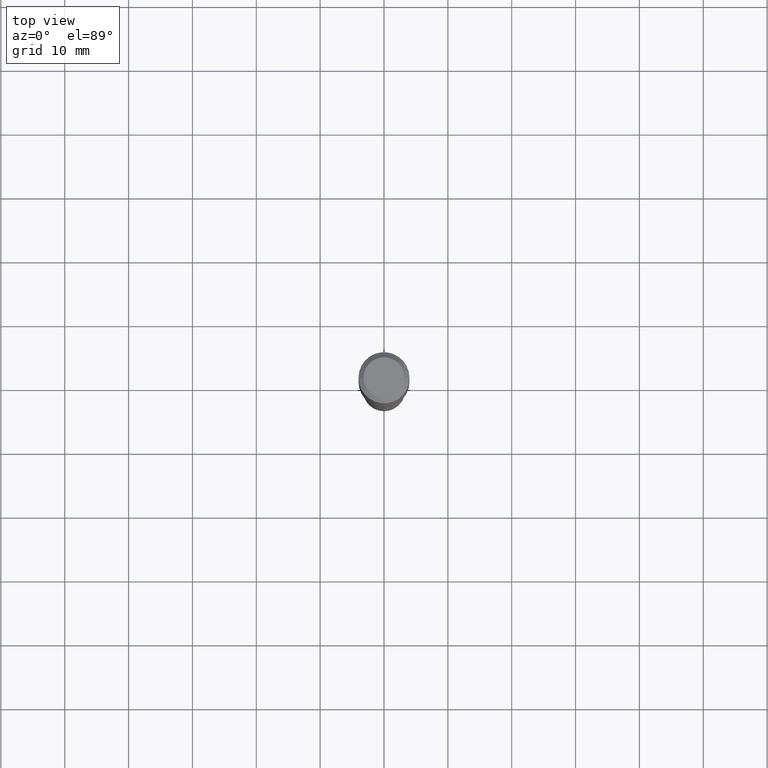
[diagram: clean part render]
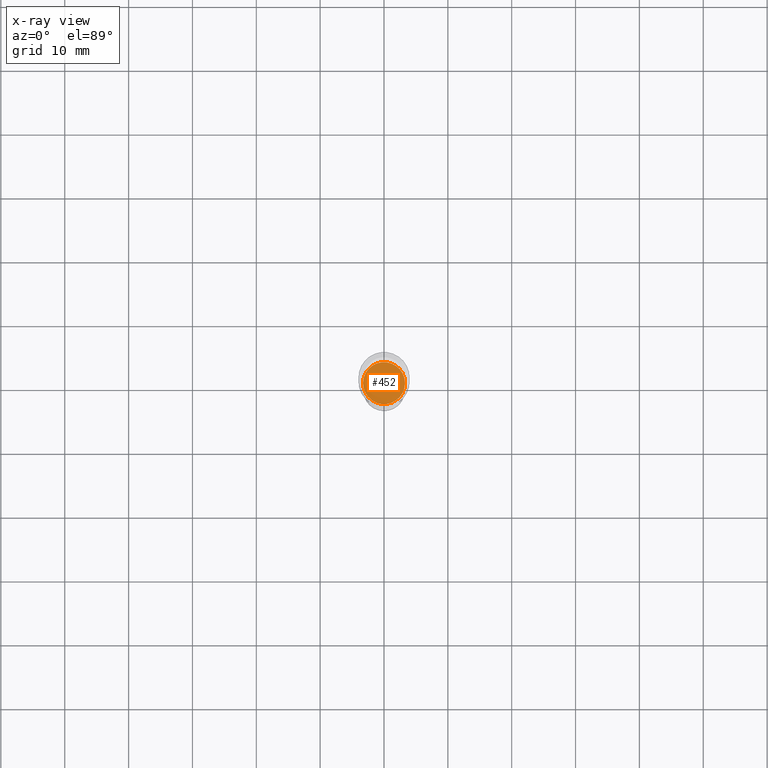
[diagram: x-ray — body ghosted, one internal face saturated and labeled with its STEP entity id]
A machine part, top view, then the same camera in x-ray: the body is ghosted and one INTERNAL B-rep face — a face not visible from any outside direction — is saturated and labeled: STEP entity #452.
In plain terms, the highlighted planar face has unit normal (-0, 0, 1).
Its self-contained STEP definition (entity closure, byte-faithful):
#6 = CARTESIAN_POINT ( 'NONE',  ( 0.1293999999999999873, -7.776576386005333509E-15, -1.968499999999999694 ) ) ;
#8 = DIRECTION ( 'NONE',  ( -2.445468806185136597E-29, 3.491481338843145583E-15, 1.000000000000000000 ) ) ;
#14 = AXIS2_PLACEMENT_3D ( 'NONE', #241, #8, #490 ) ;
#87 = CARTESIAN_POINT ( 'NONE',  ( -0.1293999999999999873, -5.950889488265051153E-15, -1.968499999999999694 ) ) ;
#90 = CIRCLE ( 'NONE', #14, 0.1293999999999999873 ) ;
#129 = VERTEX_POINT ( 'NONE', #6 ) ;
#163 = ORIENTED_EDGE ( 'NONE', *, *, #224, .F. ) ;
#182 = DIRECTION ( 'NONE',  ( -2.445468806185136597E-29, 3.491481338843145583E-15, 1.000000000000000000 ) ) ;
#187 = DIRECTION ( 'NONE',  ( 1.000000000000000000, -6.982962677686265922E-15, 4.876176775795935793E-29 ) ) ;
#224 = EDGE_CURVE ( 'NONE', #129, #417, #90, .T. ) ;
#241 = CARTESIAN_POINT ( 'NONE',  ( 4.813905344975440714E-29, -6.872981015512730918E-15, -1.968499999999999694 ) ) ;
#249 = CARTESIAN_POINT ( 'NONE',  ( 4.813905344975440714E-29, -6.872981015512730918E-15, -1.968499999999999694 ) ) ;
#260 = EDGE_CURVE ( 'NONE', #417, #129, #301, .T. ) ;
#274 = ORIENTED_EDGE ( 'NONE', *, *, #260, .F. ) ;
#275 = DIRECTION ( 'NONE',  ( -2.438088387897960049E-29, 3.491481338843145188E-15, 1.000000000000000000 ) ) ;
#276 = AXIS2_PLACEMENT_3D ( 'NONE', #249, #182, #428 ) ;
#301 = CIRCLE ( 'NONE', #276, 0.1293999999999999873 ) ;
#331 = FACE_OUTER_BOUND ( 'NONE', #461, .T. ) ;
#337 = PLANE ( 'NONE',  #427 ) ;
#417 = VERTEX_POINT ( 'NONE', #87 ) ;
#427 = AXIS2_PLACEMENT_3D ( 'NONE', #486, #275, #187 ) ;
#428 = DIRECTION ( 'NONE',  ( 1.000000000000000000, -6.982962677686265133E-15, 0.000000000000000000 ) ) ;
#452 = ADVANCED_FACE ( 'NONE', ( #331 ), #337, .F. ) ;
#461 = EDGE_LOOP ( 'NONE', ( #163, #274 ) ) ;
#486 = CARTESIAN_POINT ( 'NONE',  ( 1.911905438063391077E-29, -1.102881005378792333E-14, -1.968499999999999472 ) ) ;
#490 = DIRECTION ( 'NONE',  ( 1.000000000000000000, -6.982962677686265133E-15, 0.000000000000000000 ) ) ;